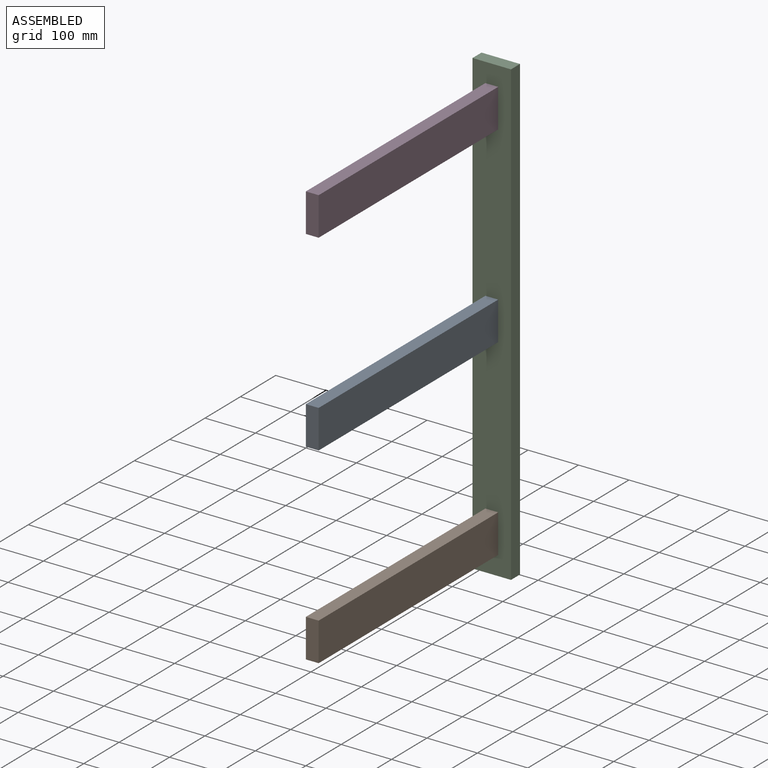
[diagram: assembled view]
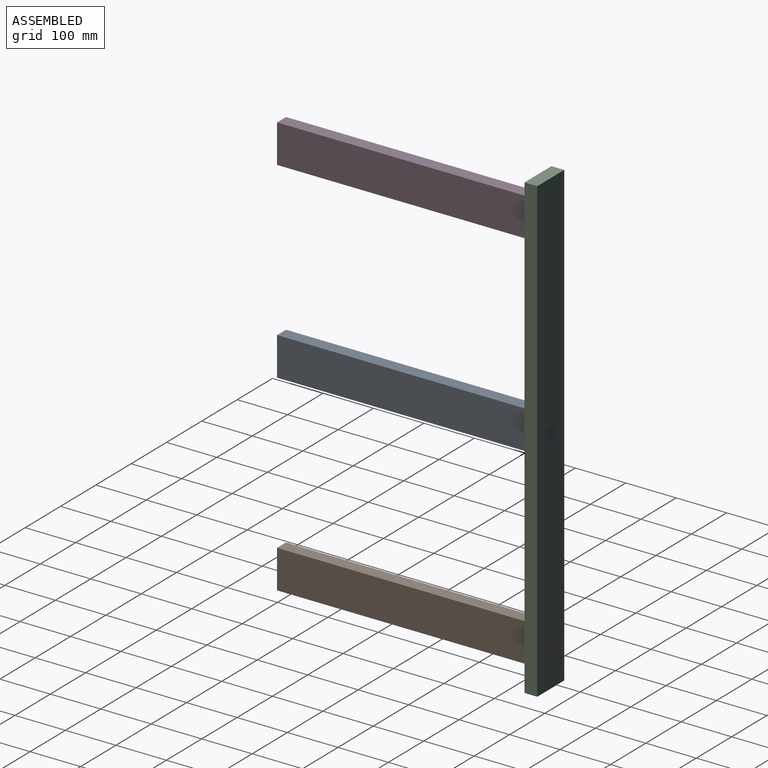
[diagram: assembled view, second angle]
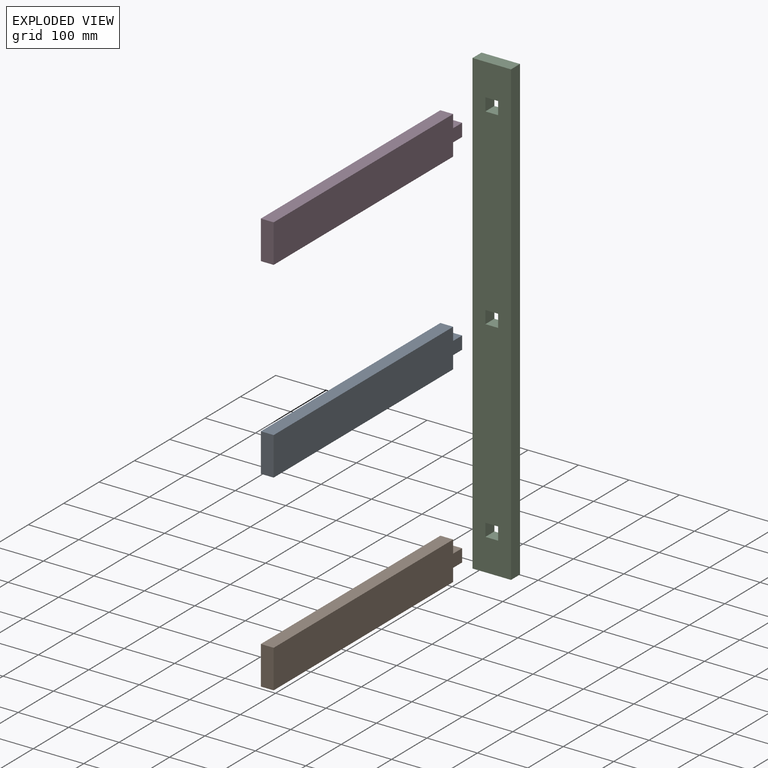
[diagram: exploded view]
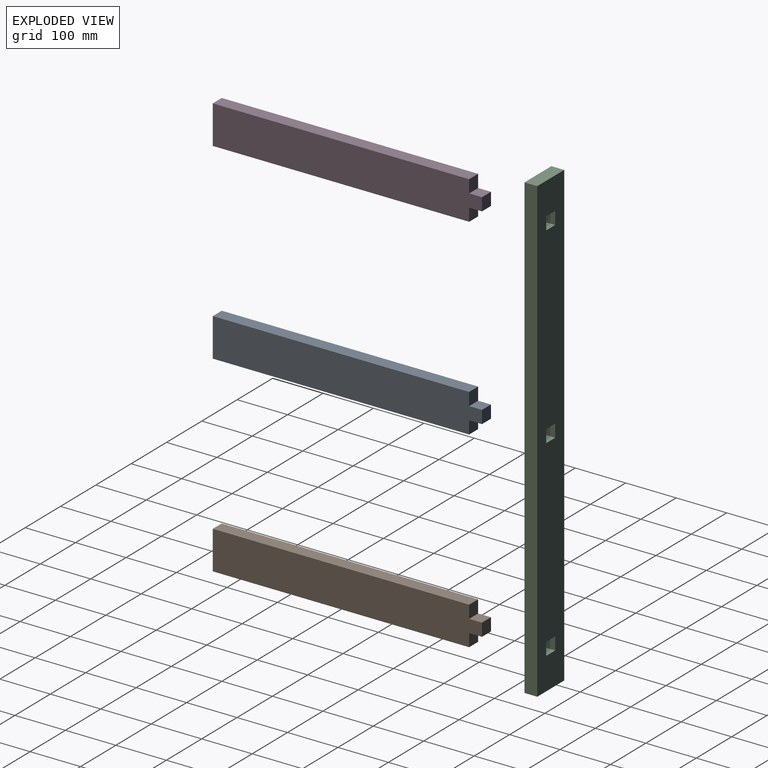
[diagram: exploded view, second angle]
ASSEMBLY  parts=4 mates=3
PART A: 10 faces, bbox 25.4x533.4x76.2 mm
  f0: plane 25.4x25.4mm, normal (0,0,-1), area 645.2mm2, adj f1,f7,f8,f9
  f1: plane 25.4x25.4mm, normal (0,1,0), area 645.2mm2, adj f0,f2,f8,f9
  f2: plane 25.4x25.4mm, normal (0,0,1), area 645.2mm2, adj f1,f3,f8,f9
  f3: plane 25.4x25.4mm, normal (0,1,0), area 645.2mm2, adj f2,f4,f8,f9
  f4: plane 508x25.4mm, normal (0,0,1), area 12903.2mm2, adj f3,f5,f8,f9
  f5: plane 76.2x25.4mm, normal (0,-1,0), area 1935.5mm2, adj f4,f6,f8,f9
  f6: plane 508x25.4mm, normal (0,0,-1), area 12903.2mm2, adj f5,f7,f8,f9
  f7: plane 25.4x25.4mm, normal (0,1,0), area 645.2mm2, adj f0,f6,f8,f9
  f8: plane 533.4x76.2mm, normal (1,0,0), area 39354.8mm2, adj f0,f1,f2,f3,f4,f5,f6,f7
  f9: plane 533.4x76.2mm, normal (-1,0,0), area 39354.8mm2, adj f0,f1,f2,f3,f4,f5,f6,f7
PART B: same geometry as A
PART C: 18 faces, bbox 76.2x25.4x914.4 mm
  f0: plane 25.4x25.4mm, normal (0,0,1), area 645.2mm2, adj f1,f15,f16,f17
  f1: plane 25.4x25.4mm, normal (1,0,0), area 645.2mm2, adj f0,f2,f16,f17
  f2: plane 25.4x25.4mm, normal (0,0,-1), area 645.2mm2, adj f1,f15,f16,f17
  f3: plane 25.4x25.4mm, normal (1,0,0), area 645.2mm2, adj f4,f12,f16,f17
  f4: plane 25.4x25.4mm, normal (0,0,-1), area 645.2mm2, adj f3,f5,f16,f17
  f5: plane 25.4x25.4mm, normal (-1,0,0), area 645.2mm2, adj f4,f12,f16,f17
  f6: plane 25.4x25.4mm, normal (0,0,1), area 645.2mm2, adj f7,f13,f16,f17
  f7: plane 25.4x25.4mm, normal (1,0,0), area 645.2mm2, adj f6,f8,f16,f17
  f8: plane 25.4x25.4mm, normal (0,0,-1), area 645.2mm2, adj f7,f13,f16,f17
  f9: plane 914.4x25.4mm, normal (-1,0,0), area 23225.8mm2, adj f10,f14,f16,f17
  f10: plane 76.2x25.4mm, normal (0,0,-1), area 1935.5mm2, adj f9,f11,f16,f17
  f11: plane 914.4x25.4mm, normal (1,0,0), area 23225.8mm2, adj f10,f14,f16,f17
  f12: plane 25.4x25.4mm, normal (0,0,1), area 645.2mm2, adj f3,f5,f16,f17
  f13: plane 25.4x25.4mm, normal (-1,0,0), area 645.2mm2, adj f6,f8,f16,f17
  f14: plane 76.2x25.4mm, normal (0,0,1), area 1935.5mm2, adj f9,f11,f16,f17
  f15: plane 25.4x25.4mm, normal (-1,0,0), area 645.2mm2, adj f0,f2,f16,f17
  f16: plane 914.4x76.2mm, normal (0,-1,0), area 67741.8mm2, adj f0,f1,f2,f3,f4,f5,f6,f7
  f17: plane 914.4x76.2mm, normal (0,1,0), area 67741.8mm2, adj f0,f1,f2,f3,f4,f5,f6,f7
PART D: same geometry as A
PLACE A t=(-67.72,6.4,-183.84)mm
PLACE B t=(-67.72,6.4,-564.84)mm
PLACE C t=(-55.02,273.1,-183.84)mm
PLACE D t=(-67.72,6.4,197.16)mm
MATE fastened B.f3 <-> C.f16  axis (0,1,0) through (-55.02,247.7,-552.14)mm
MATE fastened A.f3 <-> C.f16  axis (0,1,0) through (-55.02,247.7,-171.14)mm
MATE fastened D.f3 <-> C.f16  axis (0,1,0) through (-55.02,247.7,209.86)mm
